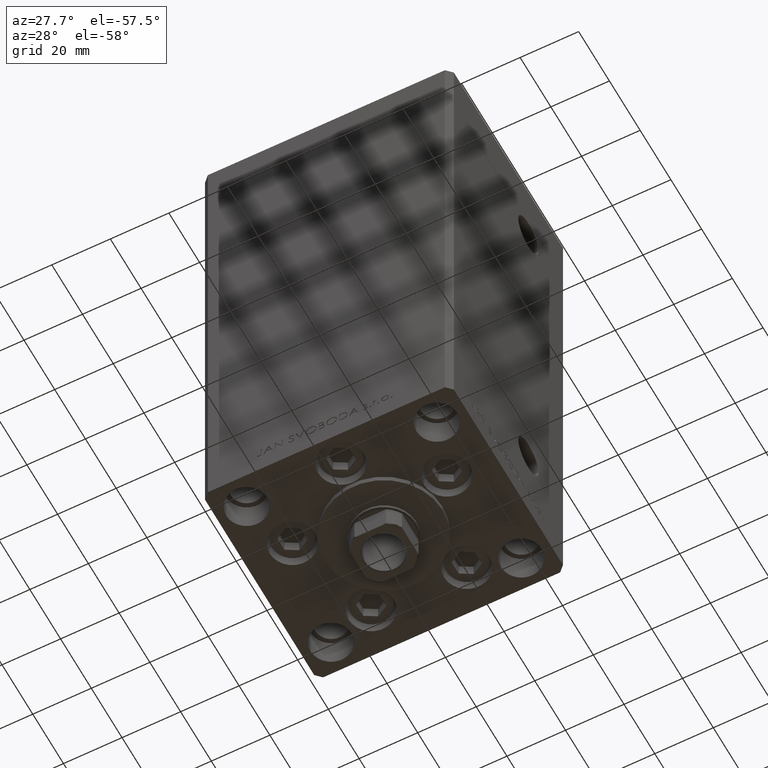
[diagram: clean part render]
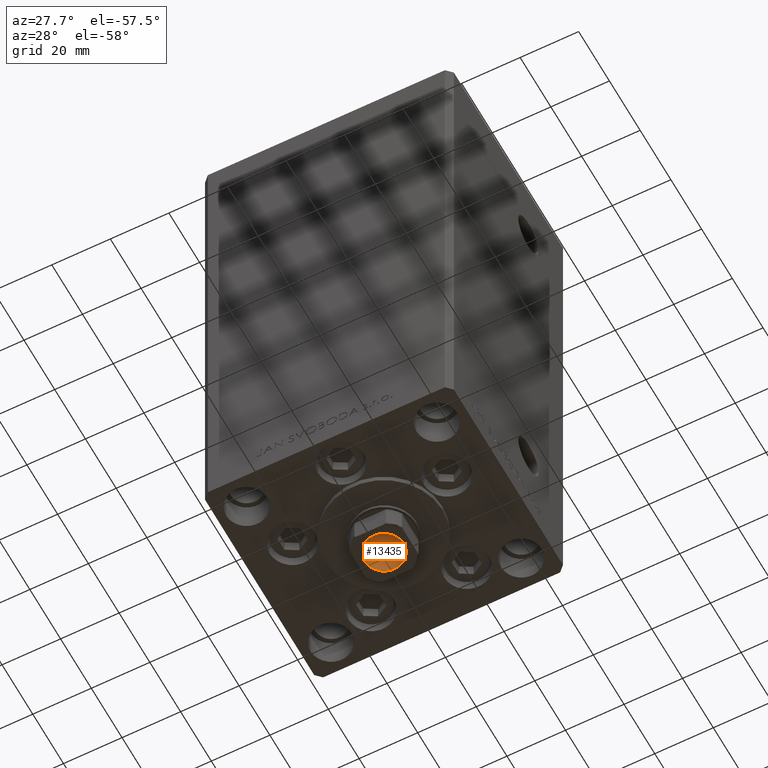
[diagram: same view with one face highlighted and labeled with its STEP entity id]
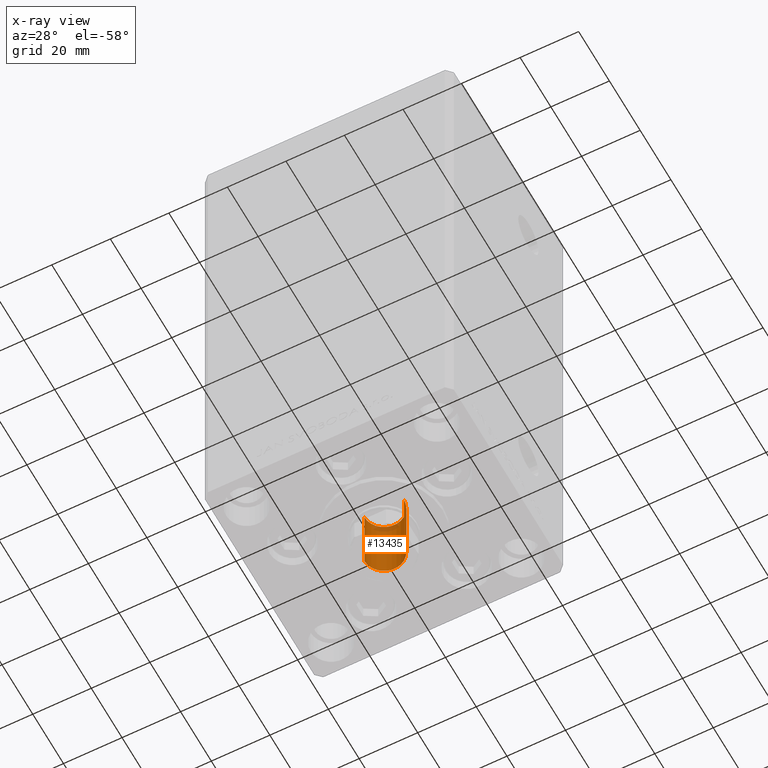
[diagram: x-ray of the same camera — body ghosted, the highlighted face saturated]
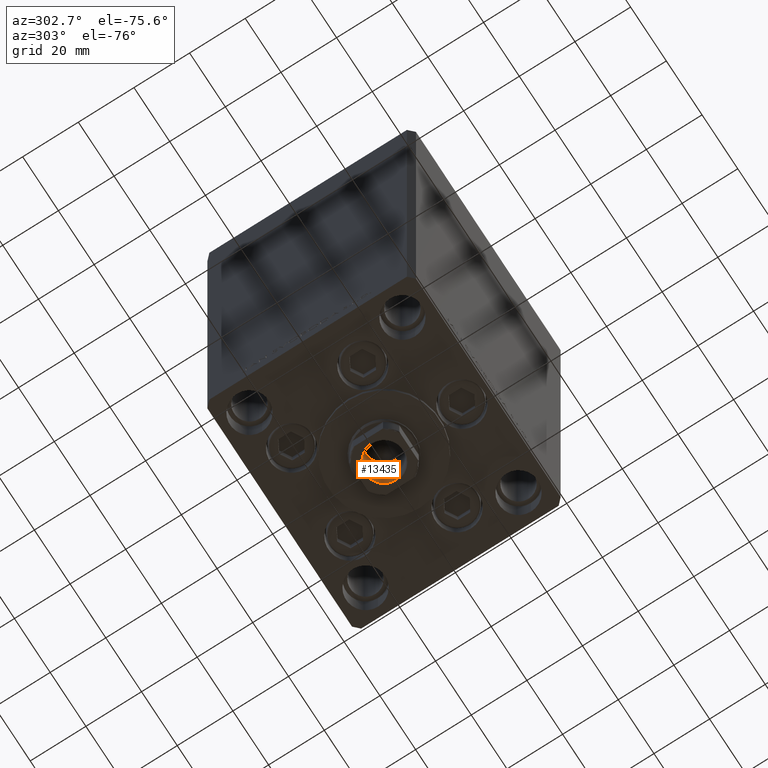
[diagram: same view with one face highlighted and labeled with its STEP entity id]
A machine part, auxiliary view. The second image highlights one B-rep face of the part: STEP entity #13435.
The next image is the same camera in x-ray: the body ghosted, the highlighted face saturated — about 7% of this face is hidden behind the body in this view.
A second angle (auxiliary view) of the same face is appended — the face is thin or edge-on in the first view.
In plain terms, the highlighted cylindrical surface (edge-blend (fillet) strip) has radius 6.75 mm, axis along (0, 0, -1).
Its self-contained STEP definition (entity closure, byte-faithful):
#856 = CYLINDRICAL_SURFACE ( 'NONE', #39420, 6.749999999999995559 ) ;
#1611 = DIRECTION ( 'NONE',  ( 1.000000000000000000, 0.000000000000000000, 0.000000000000000000 ) ) ;
#1859 = CARTESIAN_POINT ( 'NONE',  ( 0.000000000000000000, 0.000000000000000000, 155.7500000000000000 ) ) ;
#4264 = ORIENTED_EDGE ( 'NONE', *, *, #22641, .F. ) ;
#4529 = LINE ( 'NONE', #19237, #15065 ) ;
#6166 = LINE ( 'NONE', #10867, #33303 ) ;
#7919 = CARTESIAN_POINT ( 'NONE',  ( -6.749999999999993783, 8.266365894244626445E-16, 130.7500000000000000 ) ) ;
#9723 = CARTESIAN_POINT ( 'NONE',  ( 6.749999999999993783, 0.000000000000000000, 130.7500000000000000 ) ) ;
#10380 = DIRECTION ( 'NONE',  ( -0.000000000000000000, -0.000000000000000000, 1.000000000000000000 ) ) ;
#10867 = CARTESIAN_POINT ( 'NONE',  ( -6.749999999999995559, 8.266365894244628417E-16, 155.7500000000000000 ) ) ;
#13066 = FACE_OUTER_BOUND ( 'NONE', #48078, .T. ) ;
#13435 = ADVANCED_FACE ( 'NONE', ( #13066 ), #856, .F. ) ;
#14445 = VERTEX_POINT ( 'NONE', #35062 ) ;
#15065 = VECTOR ( 'NONE', #27703, 1000.000000000000000 ) ;
#15244 = VERTEX_POINT ( 'NONE', #7919 ) ;
#16608 = VERTEX_POINT ( 'NONE', #43630 ) ;
#16712 = DIRECTION ( 'NONE',  ( 0.000000000000000000, 0.000000000000000000, 1.000000000000000000 ) ) ;
#18120 = AXIS2_PLACEMENT_3D ( 'NONE', #18903, #34321, #26612 ) ;
#18903 = CARTESIAN_POINT ( 'NONE',  ( 0.000000000000000000, 0.000000000000000000, 130.7500000000000000 ) ) ;
#19237 = CARTESIAN_POINT ( 'NONE',  ( 6.749999999999995559, 0.000000000000000000, 155.7500000000000000 ) ) ;
#20370 = EDGE_CURVE ( 'NONE', #31469, #15244, #46742, .T. ) ;
#22641 = EDGE_CURVE ( 'NONE', #15244, #14445, #6166, .T. ) ;
#23315 = EDGE_CURVE ( 'NONE', #16608, #14445, #33335, .T. ) ;
#23439 = CARTESIAN_POINT ( 'NONE',  ( 0.000000000000000000, 0.000000000000000000, 155.4499999999999886 ) ) ;
#24511 = AXIS2_PLACEMENT_3D ( 'NONE', #23439, #16712, #31895 ) ;
#26514 = ORIENTED_EDGE ( 'NONE', *, *, #20370, .F. ) ;
#26612 = DIRECTION ( 'NONE',  ( 1.000000000000000000, 0.000000000000000000, 0.000000000000000000 ) ) ;
#27703 = DIRECTION ( 'NONE',  ( -0.000000000000000000, -0.000000000000000000, 1.000000000000000000 ) ) ;
#27809 = EDGE_CURVE ( 'NONE', #31469, #16608, #4529, .T. ) ;
#31469 = VERTEX_POINT ( 'NONE', #9723 ) ;
#31895 = DIRECTION ( 'NONE',  ( 1.000000000000000000, 0.000000000000000000, 0.000000000000000000 ) ) ;
#33303 = VECTOR ( 'NONE', #10380, 1000.000000000000000 ) ;
#33335 = CIRCLE ( 'NONE', #24511, 6.749999999999995559 ) ;
#34321 = DIRECTION ( 'NONE',  ( -0.000000000000000000, -0.000000000000000000, 1.000000000000000000 ) ) ;
#35062 = CARTESIAN_POINT ( 'NONE',  ( -6.749999999999995559, 8.266365894244628417E-16, 155.4499999999999886 ) ) ;
#38977 = DIRECTION ( 'NONE',  ( -0.000000000000000000, -0.000000000000000000, 1.000000000000000000 ) ) ;
#39420 = AXIS2_PLACEMENT_3D ( 'NONE', #1859, #38977, #1611 ) ;
#40851 = ORIENTED_EDGE ( 'NONE', *, *, #23315, .T. ) ;
#43619 = ORIENTED_EDGE ( 'NONE', *, *, #27809, .T. ) ;
#43630 = CARTESIAN_POINT ( 'NONE',  ( 6.749999999999995559, 0.000000000000000000, 155.4499999999999886 ) ) ;
#46742 = CIRCLE ( 'NONE', #18120, 6.749999999999993783 ) ;
#48078 = EDGE_LOOP ( 'NONE', ( #4264, #26514, #43619, #40851 ) ) ;